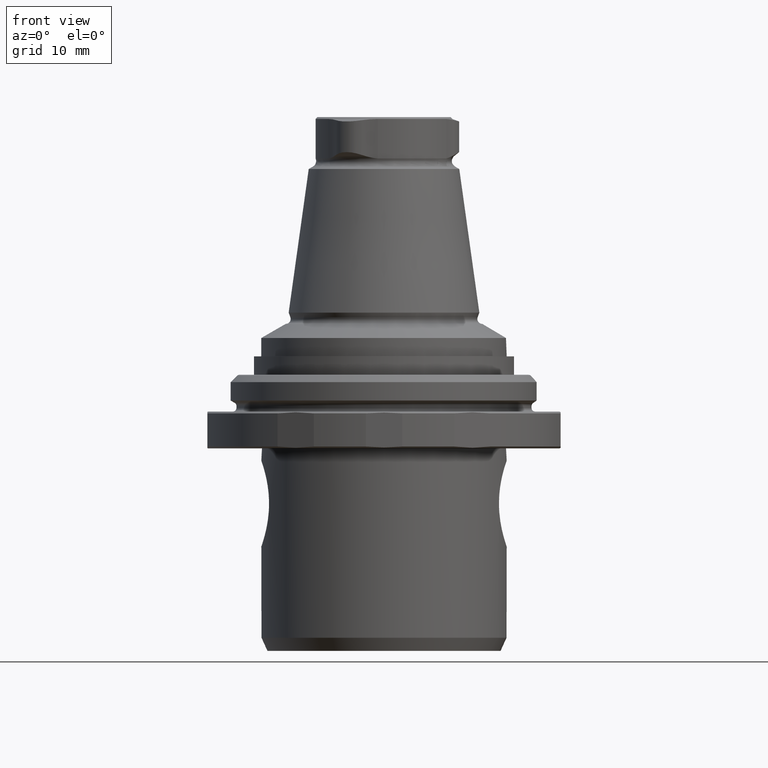
[diagram: clean part render]
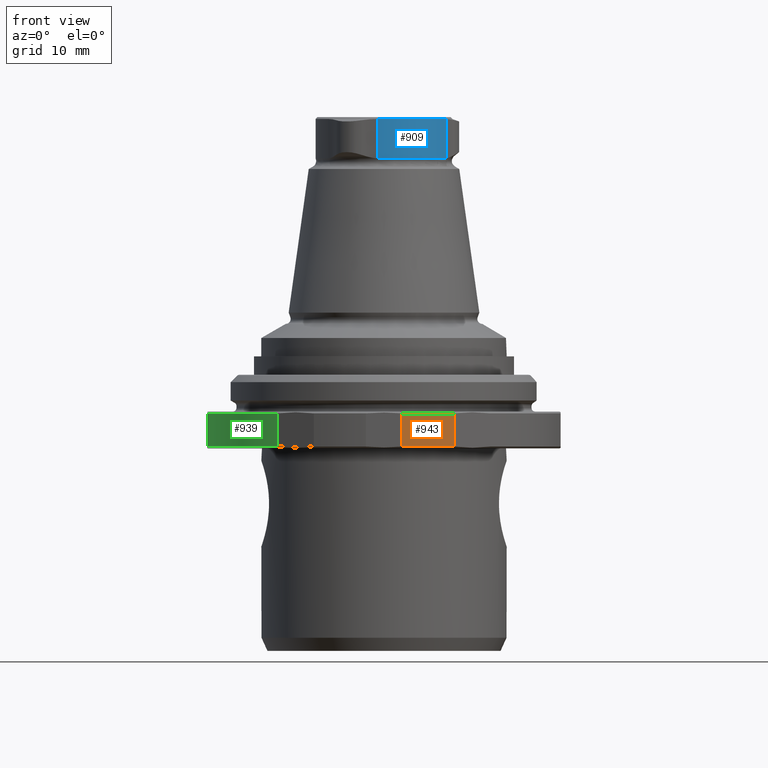
[diagram: same view with three faces highlighted in distinct colors, each labeled with its STEP entity id]
A machine part, front view with three faces highlighted in distinct colors.
Their STEP definitions:

[orange] entity #943 — the highlighted cylindrical surface (partial cylindrical patch) has radius 29 mm, axis along (-0, -0, -1).
#102=LINE('',#1700,#130);
#103=LINE('',#1704,#131);
#130=VECTOR('',#1294,1000.);
#131=VECTOR('',#1299,1000.);
#334=ORIENTED_EDGE('',*,*,#483,.T.);
#335=ORIENTED_EDGE('',*,*,#503,.T.);
#336=ORIENTED_EDGE('',*,*,#504,.F.);
#337=ORIENTED_EDGE('',*,*,#505,.T.);
#483=EDGE_CURVE('',#591,#590,#658,.T.);
#503=EDGE_CURVE('',#590,#603,#102,.T.);
#504=EDGE_CURVE('',#604,#603,#664,.T.);
#505=EDGE_CURVE('',#604,#591,#103,.F.);
#590=VERTEX_POINT('',#1638);
#591=VERTEX_POINT('',#1640);
#603=VERTEX_POINT('',#1699);
#604=VERTEX_POINT('',#1703);
#658=CIRCLE('',#1051,29.);
#664=CIRCLE('',#1065,29.);
#743=EDGE_LOOP('',(#334,#335,#336,#337));
#839=FACE_BOUND('',#743,.T.);
#888=CYLINDRICAL_SURFACE('',#1064,29.);
#943=ADVANCED_FACE('',(#839),#888,.T.);
#1051=AXIS2_PLACEMENT_3D('',#1639,#1261,#1262);
#1064=AXIS2_PLACEMENT_3D('',#1701,#1295,#1296);
#1065=AXIS2_PLACEMENT_3D('',#1702,#1297,#1298);
#1261=DIRECTION('',(-5.47430718319515E-16,-4.76420379815137E-18,-1.));
#1262=DIRECTION('',(-1.,9.15933995315755E-16,5.47430716006892E-16));
#1294=DIRECTION('',(-5.47430718319515E-16,-4.76420379815137E-18,-1.));
#1295=DIRECTION('',(-5.47430718319515E-16,-4.76420379815137E-18,-1.));
#1296=DIRECTION('',(-1.,9.15933995315755E-16,5.47430716006892E-16));
#1297=DIRECTION('',(-5.47430718319515E-16,-4.76420379815137E-18,-1.));
#1298=DIRECTION('',(-1.,9.15933995315755E-16,5.47430716006892E-16));
#1299=DIRECTION('',(-5.47430718319515E-16,-4.76420379815137E-18,-1.));
#1638=CARTESIAN_POINT('',(2.94575966433099,-28.8500000000001,-1.29592921435212));
#1639=CARTESIAN_POINT('',(-9.44733168936736E-14,-9.81659644209597E-14,-1.29592921435212));
#1640=CARTESIAN_POINT('',(11.4555136271329,-26.6415316289919,-1.29592921435213));
#1699=CARTESIAN_POINT('',(2.94575966433099,-28.8500000000001,-6.69592921435213));
#1700=CARTESIAN_POINT('',(2.94575966433099,-28.8500000000001,-0.995929214352121));
#1701=CARTESIAN_POINT('',(-9.43090876781778E-14,-9.81645351598202E-14,-0.995929214352119));
#1702=CARTESIAN_POINT('',(-9.7429442772599E-14,-9.81916911214697E-14,-6.69592921435212));
#1703=CARTESIAN_POINT('',(11.4555136271329,-26.6415316289919,-6.69592921435212));
#1704=CARTESIAN_POINT('',(11.4555136271329,-26.6415316289919,-0.995929214352125));

[blue] entity #909 — the highlighted cylindrical surface (partial cylindrical patch) has radius 11.15 mm, axis along (0, 0, 1).
#90=LINE('',#1489,#118);
#91=LINE('',#1496,#119);
#118=VECTOR('',#1150,1000.);
#119=VECTOR('',#1153,1000.);
#204=ORIENTED_EDGE('',*,*,#440,.T.);
#205=ORIENTED_EDGE('',*,*,#431,.T.);
#206=ORIENTED_EDGE('',*,*,#438,.F.);
#207=ORIENTED_EDGE('',*,*,#441,.F.);
#431=EDGE_CURVE('',#545,#538,#629,.T.);
#438=EDGE_CURVE('',#555,#538,#90,.T.);
#440=EDGE_CURVE('',#556,#545,#91,.T.);
#441=EDGE_CURVE('',#556,#555,#632,.T.);
#538=VERTEX_POINT('',#1397);
#545=VERTEX_POINT('',#1427);
#555=VERTEX_POINT('',#1490);
#556=VERTEX_POINT('',#1497);
#629=CIRCLE('',#992,11.15);
#632=CIRCLE('',#999,11.15);
#691=EDGE_LOOP('',(#204,#205,#206,#207));
#787=FACE_BOUND('',#691,.T.);
#875=CYLINDRICAL_SURFACE('',#998,11.15);
#909=ADVANCED_FACE('',(#787),#875,.T.);
#992=AXIS2_PLACEMENT_3D('',#1467,#1137,#1138);
#998=AXIS2_PLACEMENT_3D('',#1495,#1151,#1152);
#999=AXIS2_PLACEMENT_3D('',#1498,#1154,#1155);
#1137=DIRECTION('',(-4.20111564119382E-16,-8.51929323965368E-24,-1.));
#1138=DIRECTION('',(-1.,9.77164313006873E-16,4.20111561806759E-16));
#1150=DIRECTION('',(5.47430718319515E-16,8.51929311524195E-24,1.));
#1151=DIRECTION('',(5.47430718319515E-16,8.51929311524195E-24,1.));
#1152=DIRECTION('',(1.,-9.77164313006873E-16,-5.47430716006892E-16));
#1153=DIRECTION('',(5.47430718319515E-16,8.51929311524195E-24,1.));
#1154=DIRECTION('',(-4.20111564119382E-16,-8.51929323965368E-24,-1.));
#1155=DIRECTION('',(-1.,9.77164313006873E-16,4.20111561806759E-16));
#1397=CARTESIAN_POINT('',(-1.04777822012708,-11.1006603768171,46.7));
#1427=CARTESIAN_POINT('',(10.1373429951703,-4.64292763224643,46.6999999999998));
#1467=CARTESIAN_POINT('',(-6.80964972751025E-14,-9.81645347534846E-14,46.7));
#1489=CARTESIAN_POINT('',(-1.04777822012713,-11.1006603768171,-41.9719056781409));
#1490=CARTESIAN_POINT('',(-1.04777822012709,-11.1006603768171,40.2670061667769));
#1495=CARTESIAN_POINT('',(5.27168430796674E-14,-2.82060000522558E-13,-41.9719056781409));
#1496=CARTESIAN_POINT('',(10.1373429951702,-4.64292763224643,-41.9719056781409));
#1497=CARTESIAN_POINT('',(10.1373429951702,-4.64292763224643,40.2670061667778));
#1498=CARTESIAN_POINT('',(-7.00412629792113E-14,-9.81645348082892E-14,40.267006166777));

[green] entity #939 — the highlighted cylindrical surface (partial cylindrical patch) has radius 29 mm, axis along (-0, -0, -1).
#98=LINE('',#1678,#126);
#99=LINE('',#1682,#127);
#126=VECTOR('',#1278,1000.);
#127=VECTOR('',#1283,1000.);
#318=ORIENTED_EDGE('',*,*,#496,.F.);
#319=ORIENTED_EDGE('',*,*,#497,.T.);
#320=ORIENTED_EDGE('',*,*,#479,.T.);
#321=ORIENTED_EDGE('',*,*,#495,.T.);
#479=EDGE_CURVE('',#587,#586,#656,.T.);
#495=EDGE_CURVE('',#586,#599,#98,.T.);
#496=EDGE_CURVE('',#600,#599,#662,.T.);
#497=EDGE_CURVE('',#600,#587,#99,.F.);
#586=VERTEX_POINT('',#1624);
#587=VERTEX_POINT('',#1626);
#599=VERTEX_POINT('',#1677);
#600=VERTEX_POINT('',#1681);
#656=CIRCLE('',#1049,29.);
#662=CIRCLE('',#1059,29.);
#739=EDGE_LOOP('',(#318,#319,#320,#321));
#835=FACE_BOUND('',#739,.T.);
#886=CYLINDRICAL_SURFACE('',#1058,29.);
#939=ADVANCED_FACE('',(#835),#886,.T.);
#1049=AXIS2_PLACEMENT_3D('',#1625,#1257,#1258);
#1058=AXIS2_PLACEMENT_3D('',#1679,#1279,#1280);
#1059=AXIS2_PLACEMENT_3D('',#1680,#1281,#1282);
#1257=DIRECTION('',(-5.47430718319515E-16,-4.76420379815137E-18,-1.));
#1258=DIRECTION('',(-1.,9.15933995315755E-16,5.47430716006892E-16));
#1278=DIRECTION('',(-5.47430718319515E-16,-4.76420379815137E-18,-1.));
#1279=DIRECTION('',(-5.47430718319515E-16,-4.76420379815137E-18,-1.));
#1280=DIRECTION('',(-1.,9.15933995315755E-16,5.47430716006892E-16));
#1281=DIRECTION('',(-5.47430718319515E-16,-4.76420379815137E-18,-1.));
#1282=DIRECTION('',(-1.,9.15933995315755E-16,5.47430716006892E-16));
#1283=DIRECTION('',(-5.47430718319515E-16,-4.76420379815137E-18,-1.));
#1624=CARTESIAN_POINT('',(-28.8000000000001,-3.40000000000005,-1.2959292143521));
#1625=CARTESIAN_POINT('',(-9.44733168936736E-14,-9.81659644209597E-14,-1.29592921435212));
#1626=CARTESIAN_POINT('',(-17.3444863728671,-23.2415316289919,-1.29592921435211));
#1677=CARTESIAN_POINT('',(-28.8000000000001,-3.40000000000005,-6.6959292143521));
#1678=CARTESIAN_POINT('',(-28.8000000000001,-3.40000000000005,-0.995929214352104));
#1679=CARTESIAN_POINT('',(-9.43090876781778E-14,-9.81645351598202E-14,-0.995929214352119));
#1680=CARTESIAN_POINT('',(-9.7429442772599E-14,-9.81916911214697E-14,-6.69592921435212));
#1681=CARTESIAN_POINT('',(-17.3444863728671,-23.2415316289919,-6.69592921435211));
#1682=CARTESIAN_POINT('',(-17.3444863728671,-23.2415316289919,-0.99592921435211));